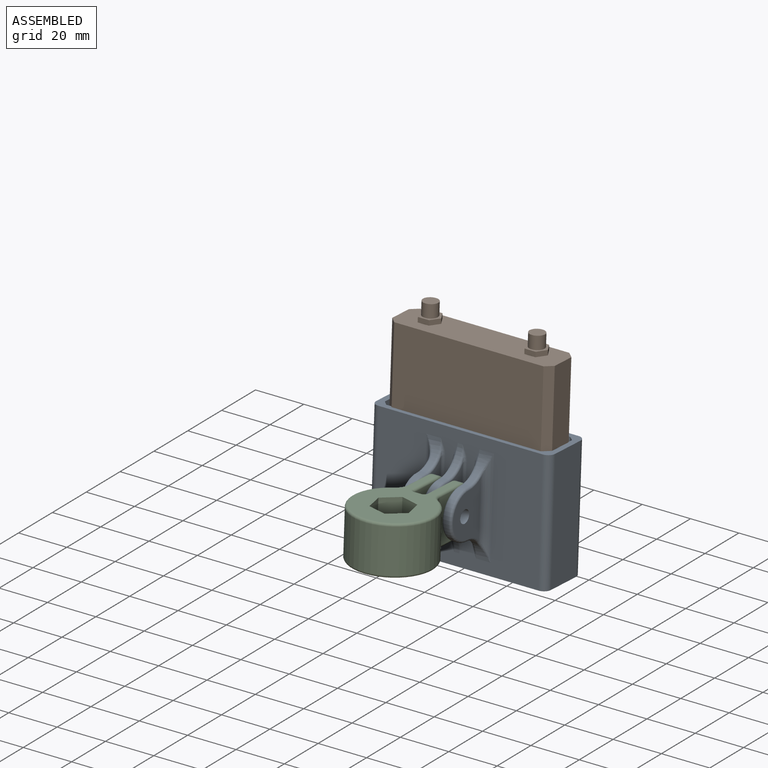
[diagram: assembled view]
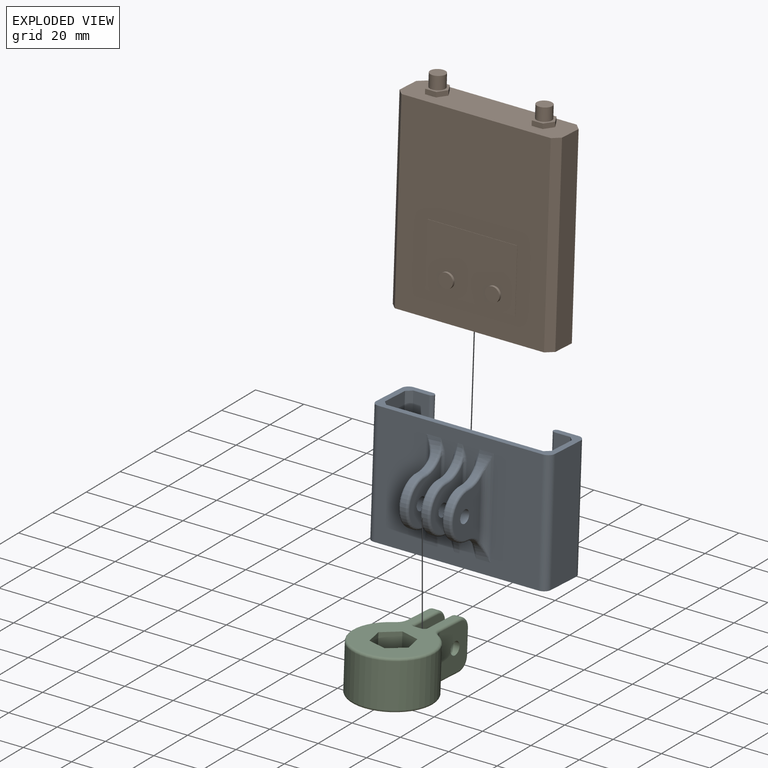
[diagram: exploded view]
GUIDED TOUR — MATED ASSEMBLY (Onshape document 57a386c9e4b03de4c9fbc180, AutoMate assembly 57a386c9e4b03de4c9fbc180_81955f31f3101d0017d982ea_912b4c185c569f65d4160755_default)

This assembly has 3 components, labeled P0..P2 below (a component is one placed occurrence of a part; the same part can appear more than once), held together by 2 mates. A mate is a constraint between two components; its type names the relative motion it leaves free:
  FASTENED — locks the two components together rigidly (no relative motion),
  PLANAR — leaves sliding in the plane through the listed point (normal = the listed direction) and rotation about that normal free.
Axis/direction vectors are unit vectors and 'through' points are millimeter coordinates, both in the assembly's world frame.

MATES
  1. PLANAR "Planar 1": P1 <-> P0, direction (0.000, -0.051, -0.999) through (6.53, 7.28, -10.28) mm
  2. FASTENED "Fastened 1": P2 <-> P0, direction (-1.000, 0.000, 0.000) through (-24.66, -12.43, 13.26) mm

ASSEMBLY ORDER
  1. P0 — the base component [order verified]
  2. P1 [order verified]
  3. P2 [order verified]
Order-tag legend:
  [order verified] — this step's position reverses a verified removal order: the component was checked to insert without passing through the ones already placed.

Of the 3 components, 1 carries the full construction recipe — the FeatureScript program that regenerates the part's solid from scratch; the rest are supplied as boundary geometry only.
Each toured component is shown spotlighted twice — in the assembled view, then in the exploded view, where a leader line traces a displaced component back to its assembled socket (saturated green if recipe-attached, orange if geometry-only; every other component desaturated gray) — followed by its recipe or geometry summary and the mates that hold it.
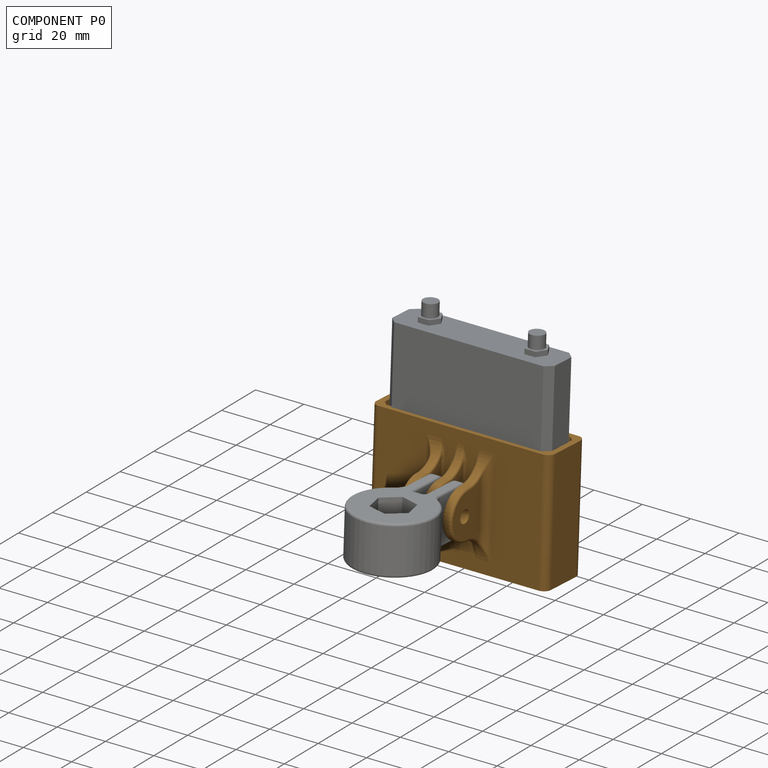
[diagram: component P0 — assembled]
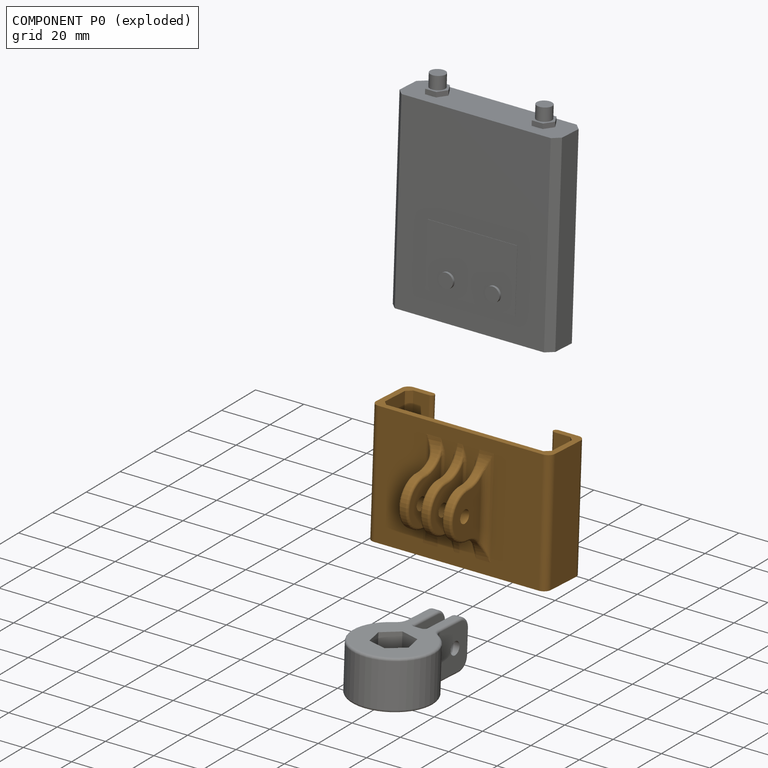
[diagram: component P0 — exploded]
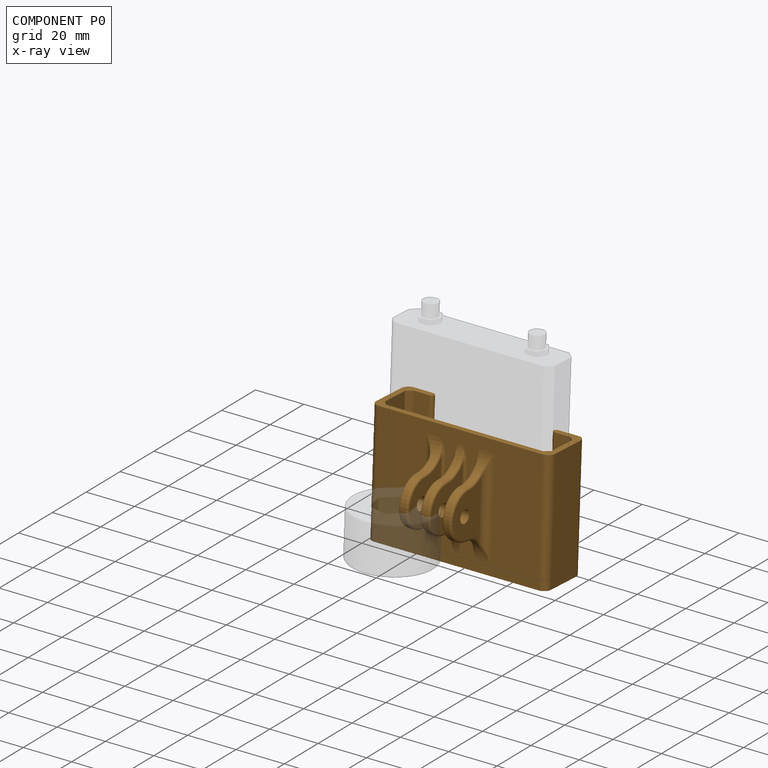
[diagram: component P0 — x-ray view]
COMPONENT P0 — geometry summary (no construction recipe available for this part):
  bounding box: 74.1 x 50.1 x 41.9 mm
  B-rep topology: 1 solid, 84 faces, 416 edges
  volume: 21227 mm^3 (14% of its bounding box)
Held by: PLANAR mate "Planar 1" to P1; FASTENED mate "Fastened 1" to P2.
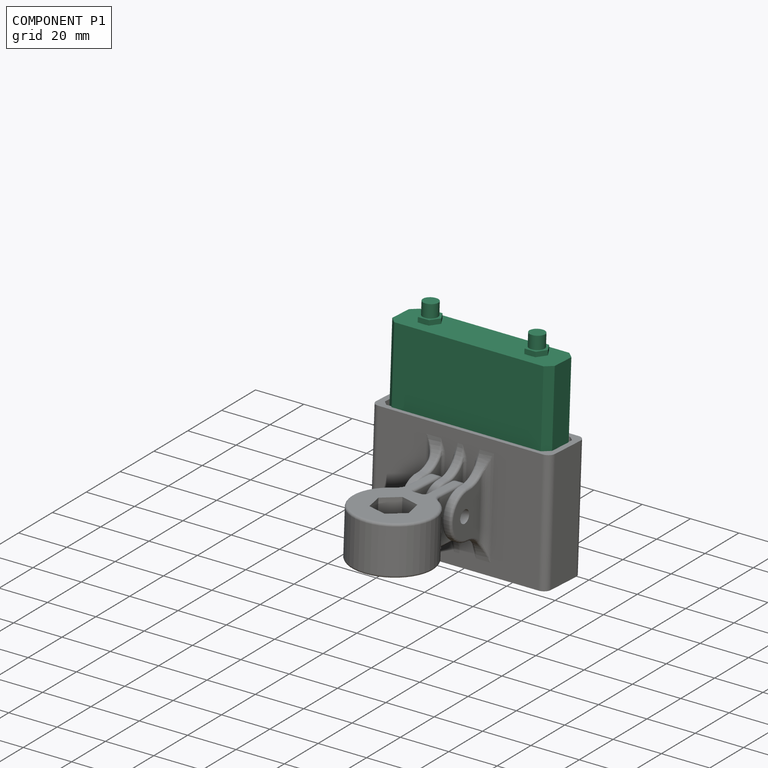
[diagram: component P1 — assembled]
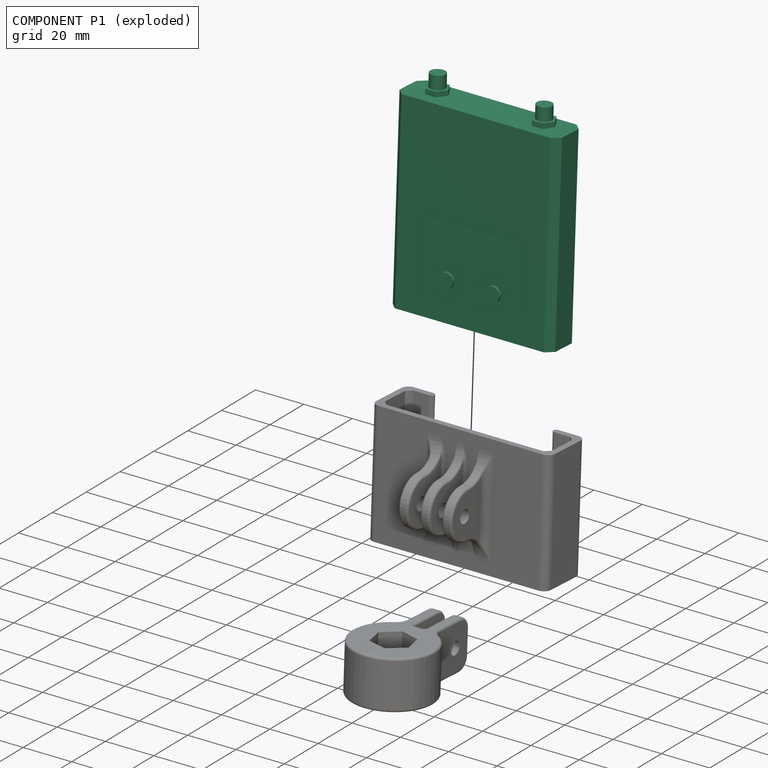
[diagram: component P1 — exploded]
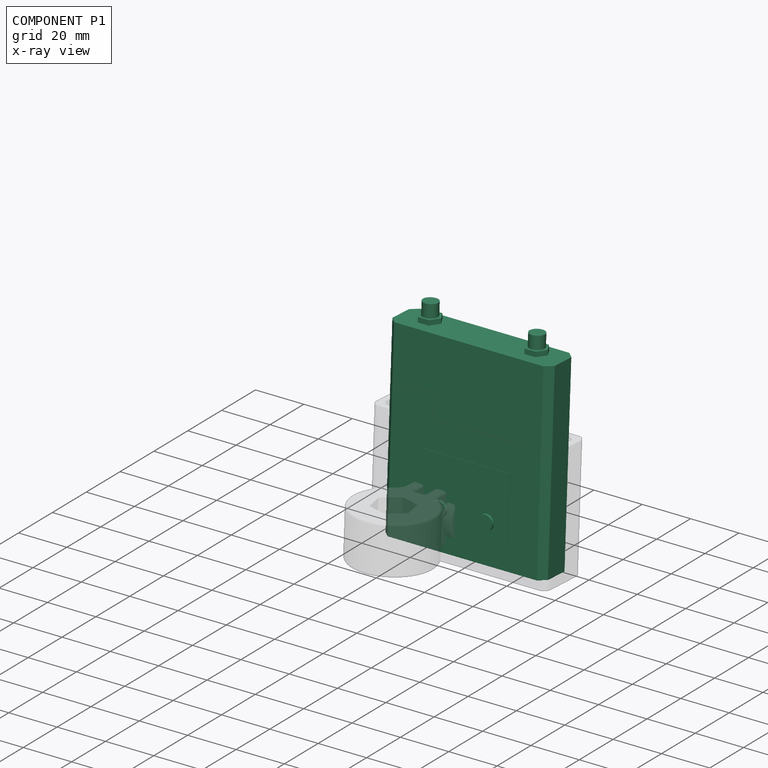
[diagram: component P1 — x-ray view]
COMPONENT P1 — recipe-attached (CADFS 00211093, mesh-verified: the recipe's output STEP matches this component's geometry to below the mesh-comparison resolution (tessellation chordal tolerance ~0.166 mm)).
Held by: PLANAR mate "Planar 1" to P0.
Construction recipe (FeatureScript — the CAD program that rebuilds this solid; sketch coordinates are in the units given by the * unit suffixes, e.g. mm):

FeatureScript 1511;
import(path : "onshape/std/geometry.fs", version : "1511.0");
import(path : "onshape/std/common.fs", version : "1511.0");
const mm = millimeter;
const VERTEX = EntityType.VERTEX;
const EDGE = EntityType.EDGE;
const FACE = EntityType.FACE;
const BODY = EntityType.BODY;
function v(x, y){return vector(x, y);}
function OD(order){return orderDisambiguation(order);}
function OSD(set){return originalSetDisambiguation(set);}
function TD(topology){return topologyDisambiguation(topology);}
function TDD(query){return trueDependencyDisambiguation(query);}
function sQuery(a, b, c) {return sketchEntityQuery(a, b, c);}

annotation { "Feature Type Name" : "Feature", "Feature Type Description" : "" }
export const myFeature = defineFeature(function(context is Context, id is Id, definition is map)
    precondition{}
    {
        {
            var Q0;
            Q0=qCreatedBy(makeId("Top.planeOp"),FACE);
            var sketch = newSketch(context, id + "F0", { "sketchPlane" : qUnion([Q0])});
            skLineSegment(sketch, "E0.bottom", {"start": v(-31.85, 6.63) * mm, "end": v(35.38, 6.63) * mm});
            skLineSegment(sketch, "E0.top", {"start": v(-31.85, -8.68) * mm, "end": v(35.38, -8.68) * mm});
            skLineSegment(sketch, "E0.left", {"start": v(-31.85, 6.63) * mm, "end": v(-31.85, -8.68) * mm});
            skLineSegment(sketch, "E0.right", {"start": v(35.38, 6.63) * mm, "end": v(35.38, -8.68) * mm});
            skSolve(sketch);
        }
        {
            var Q0;
            Q0=qSketchRegion(id+"F0",true);
            extrude(context, id + "F1", {"entities" : qUnion([Q0]), "depth" : 78.7 * mm});
        }
        {
            var Q0;
            Q0=makeQuery(id+"F1.opExtrude","CAP_FACE",FACE,{"disambiguationData":[OSD([sQuery(id+"F0.wireOp",EDGE,"E0.bottom"),sQuery(id+"F0.wireOp",EDGE,"E0.top"),sQuery(id+"F0.wireOp",EDGE,"E0.left"),sQuery(id+"F0.wireOp",EDGE,"E0.right")])],"isStart":true});
            var sketch = newSketch(context, id + "F2", { "sketchPlane" : qUnion([Q0])});
            skCircle(sketch, "E1", {"center": v(-23.1, 1.63) * mm, "radius": 1.75 * mm});
            skCircle(sketch, "E2", {"center": v(-13.9, 1.63) * mm, "radius": 1.75 * mm});
            skCircle(sketch, "E3", {"center": v(3.03, 1.63) * mm, "radius": 1.75 * mm});
            skCircle(sketch, "E4", {"center": v(24.93, 1.63) * mm, "radius": 1.75 * mm});
            skSolve(sketch);
        }
        {
            var Q0;
            Q0=qSketchRegion(id+"F2",true);
            extrude(context, id + "F3", {"entities" : qUnion([Q0]), "operationType" : NewBodyOperationType.REMOVE, "oppositeDirection" : true, "depth" : 25 * mm});
        }
        {
            var Q0;
            Q0=makeQuery(id+"F1.opExtrude","CAP_FACE",FACE,{"disambiguationData":[OSD([sQuery(id+"F0.wireOp",EDGE,"E0.bottom"),sQuery(id+"F0.wireOp",EDGE,"E0.top"),sQuery(id+"F0.wireOp",EDGE,"E0.left"),sQuery(id+"F0.wireOp",EDGE,"E0.right")])],"isStart":false});
            var sketch = newSketch(context, id + "F4", { "sketchPlane" : qUnion([Q0])});
            skCircle(sketch, "E5.cCircle", {"center": v(23.6, 0.18) * mm, "radius": 4 * mm, "construction": true});
            skLineSegment(sketch, "E5.0", {"start": v(21.3, 4.18) * mm, "end": v(25.92, 4.18) * mm});
            skLineSegment(sketch, "E5.1", {"start": v(25.92, 4.18) * mm, "end": v(28.23, 0.18) * mm});
            skLineSegment(sketch, "E5.2", {"start": v(28.23, 0.18) * mm, "end": v(25.92, -3.82) * mm});
            skLineSegment(sketch, "E5.3", {"start": v(25.92, -3.82) * mm, "end": v(21.3, -3.82) * mm});
            skLineSegment(sketch, "E5.4", {"start": v(21.3, -3.82) * mm, "end": v(18.99, 0.18) * mm});
            skLineSegment(sketch, "E5.5", {"start": v(18.99, 0.18) * mm, "end": v(21.3, 4.18) * mm});
            skPoint(sketch, "E5.0.midPoint", {"position": v(23.6, 4.18) * mm});
            skCircle(sketch, "E6.cCircle", {"center": v(-20.51, 0.18) * mm, "radius": 4 * mm, "construction": true});
            skLineSegment(sketch, "E6.0", {"start": v(-22.82, 4.18) * mm, "end": v(-18.2, 4.18) * mm});
            skLineSegment(sketch, "E6.1", {"start": v(-18.2, 4.18) * mm, "end": v(-15.9, 0.18) * mm});
            skLineSegment(sketch, "E6.2", {"start": v(-15.9, 0.18) * mm, "end": v(-18.2, -3.82) * mm});
            skLineSegment(sketch, "E6.3", {"start": v(-18.2, -3.82) * mm, "end": v(-22.82, -3.82) * mm});
            skLineSegment(sketch, "E6.4", {"start": v(-22.82, -3.82) * mm, "end": v(-25.13, 0.18) * mm});
            skLineSegment(sketch, "E6.5", {"start": v(-25.13, 0.18) * mm, "end": v(-22.82, 4.18) * mm});
            skPoint(sketch, "E6.0.midPoint", {"position": v(-20.51, 4.18) * mm});
            skCircle(sketch, "E7", {"center": v(-20.51, 0.18) * mm, "radius": 3.1 * mm});
            skCircle(sketch, "E8", {"center": v(23.6, 0.18) * mm, "radius": 3.1 * mm});
            skSolve(sketch);
        }
        {
            var Q0;
            Q0=qSketchRegion(id+"F4",true);
            extrude(context, id + "F5", {"entities" : qUnion([Q0]), "operationType" : NewBodyOperationType.ADD, "depth" : 2 * mm});
        }
        {
            var Q0;
            Q0=makeQuery(id+"F5.boolean.opBoolean","SPLIT",FACE,{"disambiguationData":[TD([makeQuery(id+"F5.opExtrude","SWEPT_FACE",FACE,{"disambiguationData":[OSD([sQuery(id+"F4.wireOp",EDGE,"E7")])]})])],"derivedFrom":makeQuery(id+"F1.opExtrude","CAP_FACE",FACE,{"disambiguationData":[OSD([sQuery(id+"F0.wireOp",EDGE,"E0.bottom"),sQuery(id+"F0.wireOp",EDGE,"E0.top"),sQuery(id+"F0.wireOp",EDGE,"E0.left"),sQuery(id+"F0.wireOp",EDGE,"E0.right")])],"isStart":false})});
            var Q1;
            Q1=makeQuery(id+"F5.boolean.opBoolean","SPLIT",FACE,{"disambiguationData":[TD([makeQuery(id+"F5.opExtrude","SWEPT_FACE",FACE,{"disambiguationData":[OSD([sQuery(id+"F4.wireOp",EDGE,"E8")])]})])],"derivedFrom":makeQuery(id+"F1.opExtrude","CAP_FACE",FACE,{"disambiguationData":[OSD([sQuery(id+"F0.wireOp",EDGE,"E0.bottom"),sQuery(id+"F0.wireOp",EDGE,"E0.top"),sQuery(id+"F0.wireOp",EDGE,"E0.left"),sQuery(id+"F0.wireOp",EDGE,"E0.right")])],"isStart":false})});
            extrude(context, id + "F6", {"entities" : qUnion([Q0, Q1]), "operationType" : NewBodyOperationType.ADD, "depth" : 7.28 * mm});
        }
        {
            var Q0;
            Q0=makeQuery(id+"F1.opExtrude","SWEPT_FACE",FACE,{"disambiguationData":[OSD([sQuery(id+"F0.wireOp",EDGE,"E0.top")])]});
            var sketch = newSketch(context, id + "F7", { "sketchPlane" : qUnion([Q0])});
            skLineSegment(sketch, "E9.bottom", {"start": v(-16.85, 36) * mm, "end": v(20.38, 36) * mm});
            skLineSegment(sketch, "E9.top", {"start": v(-16.85, 10) * mm, "end": v(20.38, 10) * mm});
            skLineSegment(sketch, "E9.left", {"start": v(-16.85, 36) * mm, "end": v(-16.85, 10) * mm});
            skLineSegment(sketch, "E9.right", {"start": v(20.38, 36) * mm, "end": v(20.38, 10) * mm});
            skSolve(sketch);
        }
        {
            var Q0;
            Q0=qSketchRegion(id+"F7",true);
            extrude(context, id + "F8", {"entities" : qUnion([Q0]), "operationType" : NewBodyOperationType.ADD, "depth" : .1 * mm});
        }
        {
            var Q0;
            Q0=makeQuery(id+"F8.opExtrude","CAP_FACE",FACE,{"disambiguationData":[OSD([sQuery(id+"F7.wireOp",EDGE,"E9.bottom"),sQuery(id+"F7.wireOp",EDGE,"E9.top"),sQuery(id+"F7.wireOp",EDGE,"E9.left"),sQuery(id+"F7.wireOp",EDGE,"E9.right")])],"isStart":false});
            var sketch = newSketch(context, id + "F9", { "sketchPlane" : qUnion([Q0])});
            skCircle(sketch, "E10", {"center": v(-7.85, 16) * mm, "radius": 3 * mm});
            skCircle(sketch, "E11", {"center": v(11.38, 16) * mm, "radius": 3 * mm});
            skSolve(sketch);
        }
        {
            var Q0;
            Q0=qSketchRegion(id+"F9",true);
            extrude(context, id + "F10", {"entities" : qUnion([Q0]), "operationType" : NewBodyOperationType.ADD, "depth" : 1 * mm});
        }
        {
            var Q0;
            Q0=makeQuery(id+"F1.opExtrude","SWEPT_EDGE",EDGE,{"disambiguationData":[OSD([sQuery(id+"F0.wireOp",EDGE,"E0.top"),sQuery(id+"F0.wireOp",EDGE,"E0.right")])]});
            var Q1;
            Q1=makeQuery(id+"F1.opExtrude","SWEPT_EDGE",EDGE,{"disambiguationData":[OSD([sQuery(id+"F0.wireOp",EDGE,"E0.bottom"),sQuery(id+"F0.wireOp",EDGE,"E0.right")])]});
            var Q2;
            Q2=makeQuery(id+"F1.opExtrude","SWEPT_EDGE",EDGE,{"disambiguationData":[OSD([sQuery(id+"F0.wireOp",EDGE,"E0.bottom"),sQuery(id+"F0.wireOp",EDGE,"E0.left")])]});
            var Q3;
            Q3=makeQuery(id+"F1.opExtrude","SWEPT_EDGE",EDGE,{"disambiguationData":[OSD([sQuery(id+"F0.wireOp",EDGE,"E0.top"),sQuery(id+"F0.wireOp",EDGE,"E0.left")])]});
            chamfer(context, id + "F11", {"entities" : qUnion([Q0, Q1, Q2, Q3]), "width" : 2.75 * mm, "tangentPropagation" : true});
        }
    });
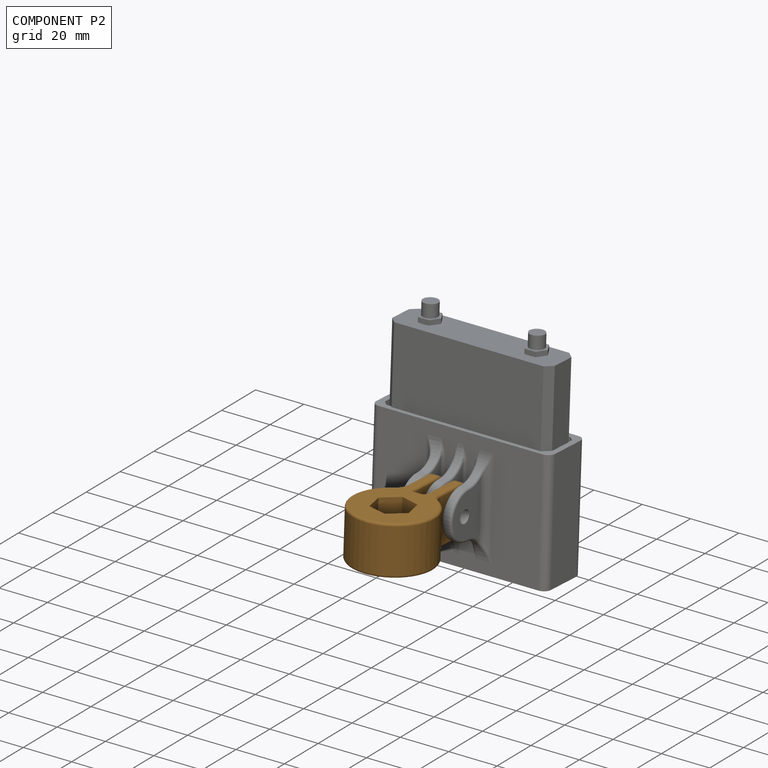
[diagram: component P2 — assembled]
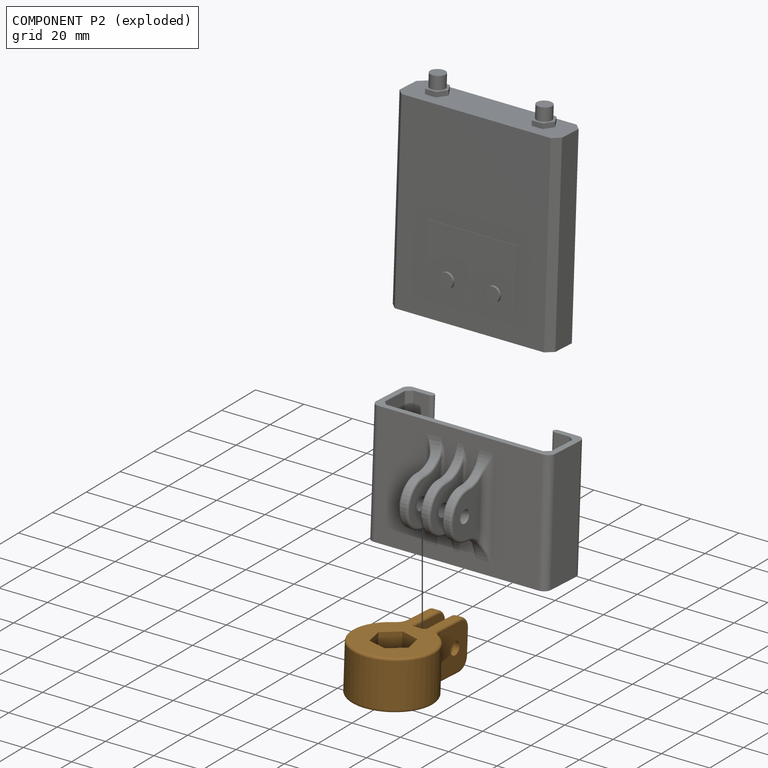
[diagram: component P2 — exploded]
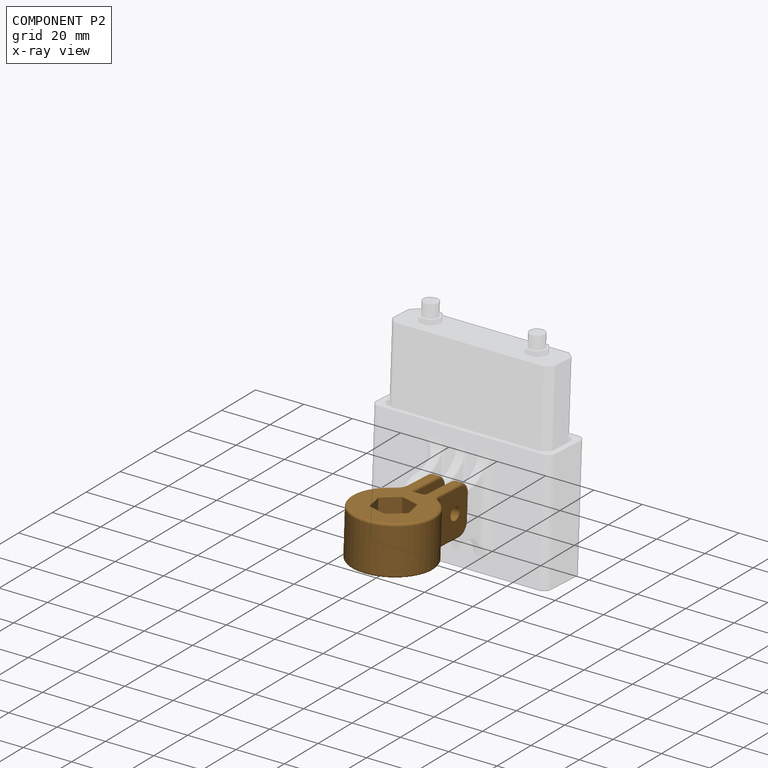
[diagram: component P2 — x-ray view]
COMPONENT P2 — geometry summary (no construction recipe available for this part):
  bounding box: 53.2 x 35.7 x 20.8 mm
  B-rep topology: 1 solid, 60 faces, 280 edges
  volume: 16899 mm^3 (43% of its bounding box)
Held by: FASTENED mate "Fastened 1" to P0.
PROVENANCE & LICENSES
Assembly (occurrences, transforms, mates, per-part STEP geometry): AutoMate dataset, Zenodo record 7776208, CC0.
Construction recipes: CADFS (HuggingFace VladPyatov/CADFS, CC-BY-4.0, layered over the ABC dataset), FeatureScript reconstruction programs keyed by ABC model id.
Join: ABC meta listings map ABC model id -> Onshape documentId; within a shared document, parts are matched by geometric signature (bounding-box dims + volume at 0.1% relative tolerance, exact B-rep face/solid counts).
Verification: 1 of this assembly's 3 components carries a recipe attachment, and every attachment is mesh-verified: the CADFS STEP and the AutoMate member STEP were compared as meshes in their shared local frame (symmetric sampled-point-to-mesh distance); worst across the 1 attachment: below the mesh-comparison resolution (tessellation chordal tolerance ~0.166 mm) on a 110 mm part.
Renders: orthographic iso camera (az 35 / el 25); the floor grid conveys scale (grid pitch printed in each image; no ruler). In the exploded view each component is displaced by its stored offset vector: the offsets alone carry the explosion direction (mate normal/axis signs are not orientation cues and do not encode it), and separation distances are assigned per mate-chain, not proportionally to assembly-order depth.
